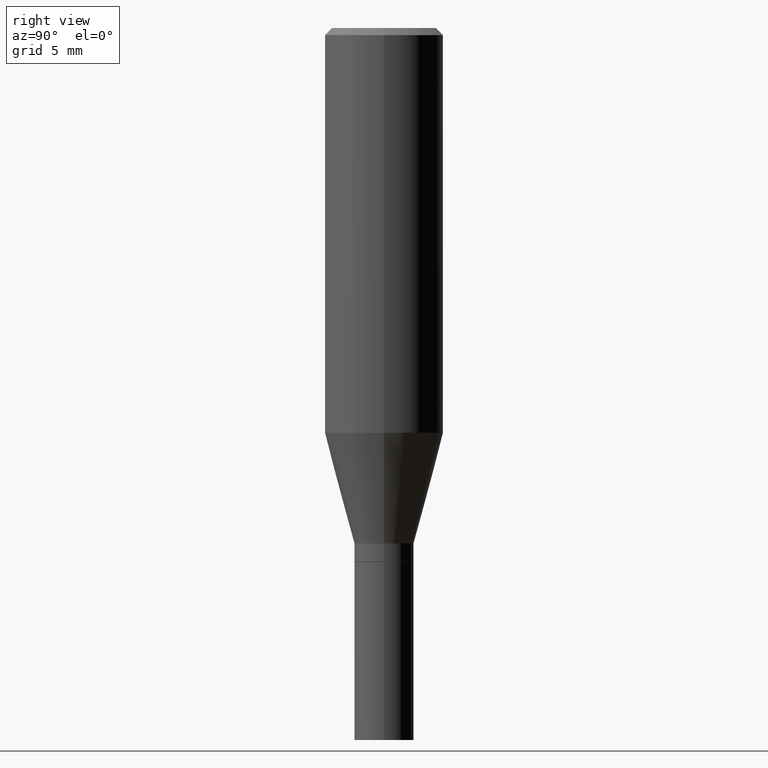
[diagram: clean part render]
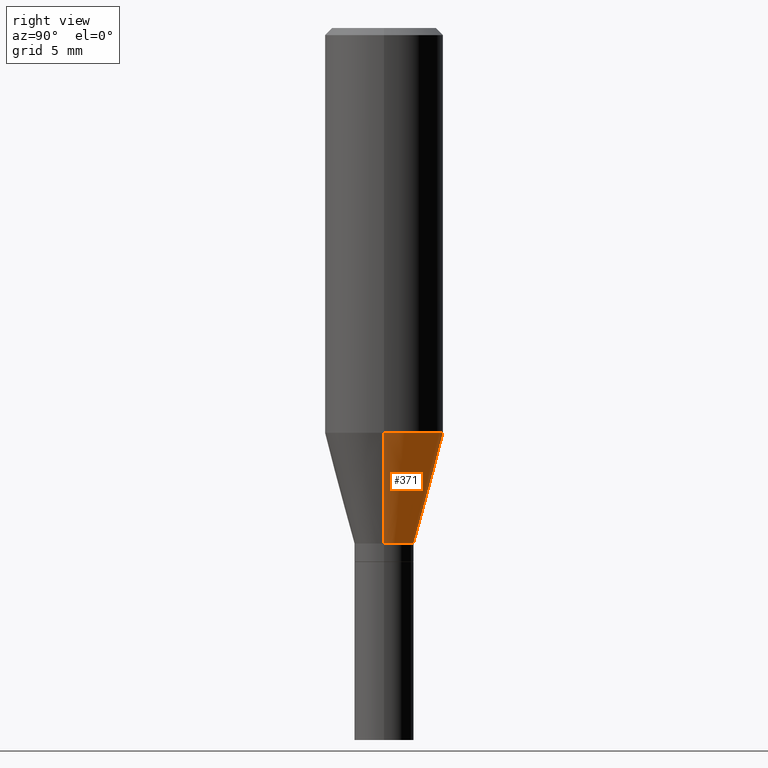
[diagram: same view with one face highlighted and labeled with its STEP entity id]
A machine part, right view. The second image highlights one B-rep face of the part: STEP entity #371.
In plain terms, the highlighted conical surface has half-angle 15 deg.
Its self-contained STEP definition (entity closure, byte-faithful):
#14 = AXIS2_PLACEMENT_3D ( 'NONE', #81, #316, #425 ) ;
#15 = FACE_OUTER_BOUND ( 'NONE', #301, .T. ) ;
#28 = VECTOR ( 'NONE', #94, 39.37007874015747433 ) ;
#35 = CARTESIAN_POINT ( 'NONE',  ( 2.655779123517058654E-29, -3.791748733983656424E-15, -1.086000000000000076 ) ) ;
#53 = EDGE_CURVE ( 'NONE', #346, #176, #127, .T. ) ;
#67 = CARTESIAN_POINT ( 'NONE',  ( 0.1250000000000000000, -3.850219959304365574E-15, -0.8527468245269461677 ) ) ;
#81 = CARTESIAN_POINT ( 'NONE',  ( 2.655779123517058654E-29, -3.791748733983656424E-15, -1.086000000000000076 ) ) ;
#94 = DIRECTION ( 'NONE',  ( -0.2588190451025214611, 5.211531920934551042E-15, 0.9659258262890682012 ) ) ;
#112 = AXIS2_PLACEMENT_3D ( 'NONE', #35, #214, #375 ) ;
#122 = CARTESIAN_POINT ( 'NONE',  ( -0.1250000000000000000, -2.089171204893457398E-15, -0.8527468245269461677 ) ) ;
#127 = CIRCLE ( 'NONE', #461, 0.1250000000000000000 ) ;
#128 = CONICAL_SURFACE ( 'NONE', #112, 0.06250000000000005551, 0.2617993877991501295 ) ;
#144 = CARTESIAN_POINT ( 'NONE',  ( 2.085365758954077213E-29, -2.977349624593583024E-15, -0.8527468245269461677 ) ) ;
#157 = CARTESIAN_POINT ( 'NONE',  ( -0.06250000000000005551, -2.718415364513525405E-15, -1.086000000000000076 ) ) ;
#170 = LINE ( 'NONE', #430, #28 ) ;
#176 = VERTEX_POINT ( 'NONE', #122 ) ;
#187 = DIRECTION ( 'NONE',  ( 0.2588190451025214611, 1.565188264969621573E-15, 0.9659258262890682012 ) ) ;
#198 = VECTOR ( 'NONE', #187, 39.37007874015747433 ) ;
#205 = ORIENTED_EDGE ( 'NONE', *, *, #207, .T. ) ;
#207 = EDGE_CURVE ( 'NONE', #431, #272, #465, .T. ) ;
#214 = DIRECTION ( 'NONE',  ( -2.445468806185136597E-29, 3.491481338843145583E-15, 1.000000000000000000 ) ) ;
#265 = ORIENTED_EDGE ( 'NONE', *, *, #360, .F. ) ;
#272 = VERTEX_POINT ( 'NONE', #157 ) ;
#287 = CARTESIAN_POINT ( 'NONE',  ( 0.06250000000000005551, -4.228183901339048093E-15, -1.086000000000000076 ) ) ;
#294 = ORIENTED_EDGE ( 'NONE', *, *, #53, .F. ) ;
#301 = EDGE_LOOP ( 'NONE', ( #205, #315, #294, #265 ) ) ;
#315 = ORIENTED_EDGE ( 'NONE', *, *, #450, .T. ) ;
#316 = DIRECTION ( 'NONE',  ( -2.445468806185136597E-29, 3.491481338843145583E-15, 1.000000000000000000 ) ) ;
#340 = DIRECTION ( 'NONE',  ( -2.445468806185136597E-29, 3.491481338843145583E-15, 1.000000000000000000 ) ) ;
#346 = VERTEX_POINT ( 'NONE', #67 ) ;
#351 = CARTESIAN_POINT ( 'NONE',  ( 0.06250000000000005551, -4.228183901339048093E-15, -1.086000000000000076 ) ) ;
#360 = EDGE_CURVE ( 'NONE', #431, #346, #411, .T. ) ;
#371 = ADVANCED_FACE ( 'NONE', ( #15 ), #128, .T. ) ;
#375 = DIRECTION ( 'NONE',  ( 1.000000000000000000, -6.982962677686264344E-15, 0.000000000000000000 ) ) ;
#381 = DIRECTION ( 'NONE',  ( 1.000000000000000000, -6.982962677686266711E-15, 0.000000000000000000 ) ) ;
#411 = LINE ( 'NONE', #351, #198 ) ;
#425 = DIRECTION ( 'NONE',  ( 1.000000000000000000, -6.982962677686264344E-15, 0.000000000000000000 ) ) ;
#430 = CARTESIAN_POINT ( 'NONE',  ( -0.06250000000000005551, -3.347659524133593019E-15, -1.086000000000000076 ) ) ;
#431 = VERTEX_POINT ( 'NONE', #287 ) ;
#450 = EDGE_CURVE ( 'NONE', #272, #176, #170, .T. ) ;
#461 = AXIS2_PLACEMENT_3D ( 'NONE', #144, #340, #381 ) ;
#465 = CIRCLE ( 'NONE', #14, 0.06250000000000005551 ) ;